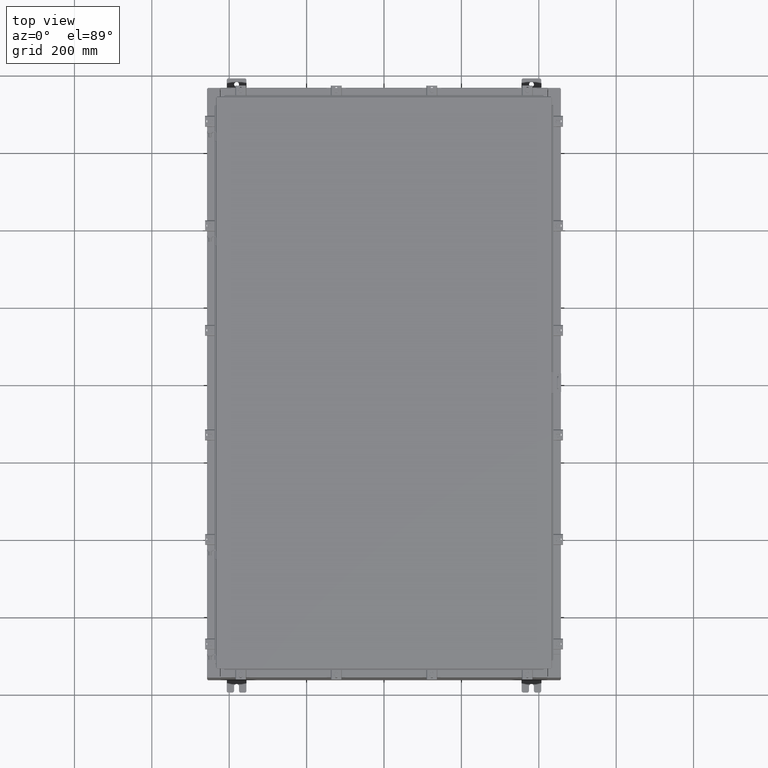
[diagram: clean part render]
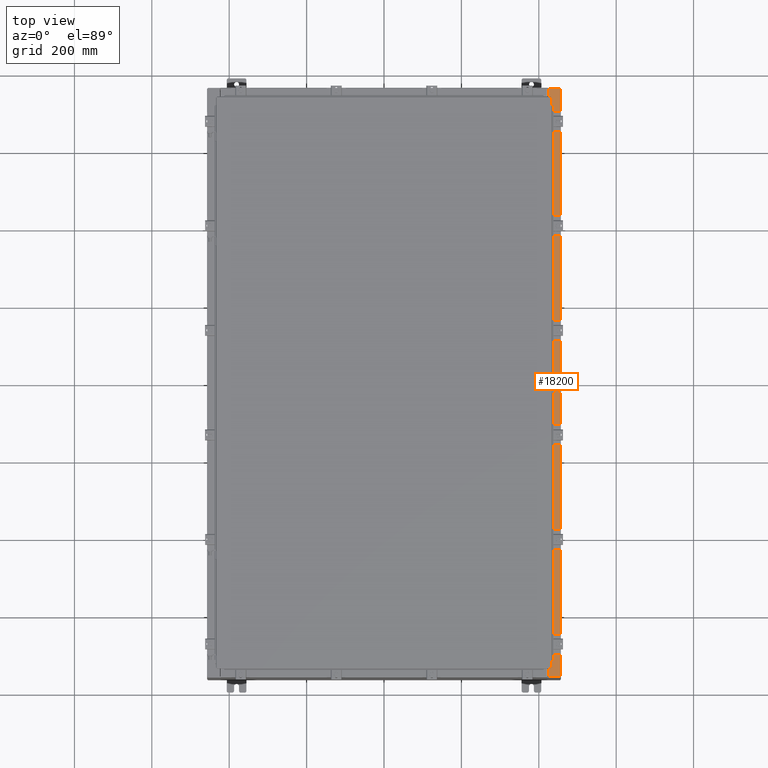
[diagram: same view with one face highlighted and labeled with its STEP entity id]
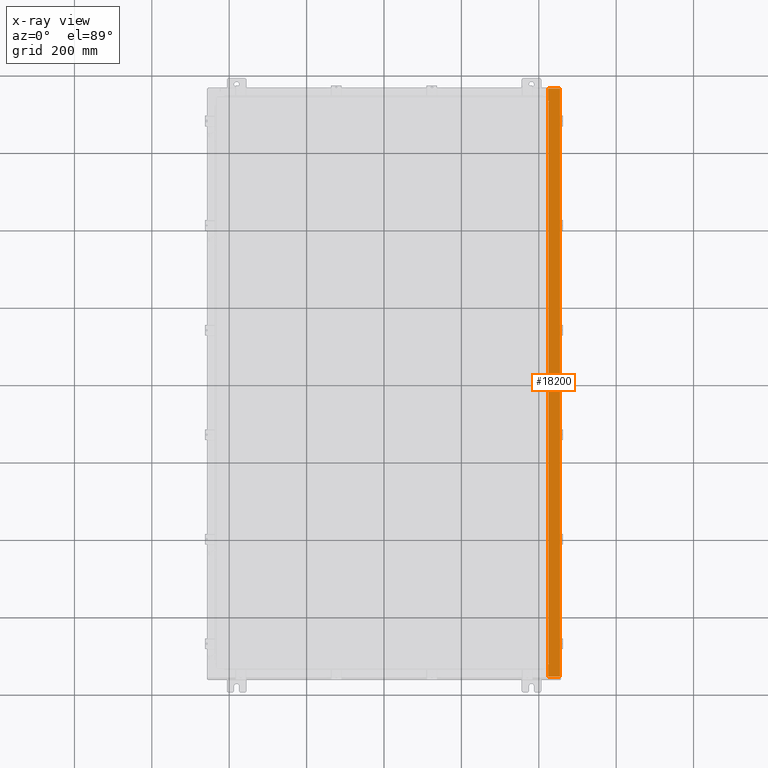
[diagram: x-ray of the same camera — body ghosted, the highlighted face saturated]
A machine part, top view. The second image highlights one B-rep face of the part: STEP entity #18200.
The next image is the same camera in x-ray: the body ghosted, the highlighted face saturated — about 0% of this face is hidden behind the body in this view.
In plain terms, the highlighted planar face has unit normal (-0, -0, -1).
Its self-contained STEP definition (entity closure, byte-faithful):
#413 = CARTESIAN_POINT ( 'NONE',  ( 16.69970000000005300, -28.63110000000000700, 15.92530000000000500 ) ) ;
#508 = DIRECTION ( 'NONE',  ( 3.651556366905947300E-017, -1.000000000000000000, 3.651556366905926900E-017 ) ) ;
#671 = LINE ( 'NONE', #17637, #22641 ) ;
#1128 = VECTOR ( 'NONE', #24385, 39.37007874015748100 ) ;
#1329 = VECTOR ( 'NONE', #23170, 39.37007874015748100 ) ;
#1768 = CARTESIAN_POINT ( 'NONE',  ( 17.91230000000005200, -29.92530000000001100, 15.92530000000000200 ) ) ;
#1787 = LINE ( 'NONE', #5551, #3081 ) ;
#2007 = ORIENTED_EDGE ( 'NONE', *, *, #23087, .T. ) ;
#2577 = CARTESIAN_POINT ( 'NONE',  ( 16.75005000000005500, -28.61242500000000900, 15.92530000000000500 ) ) ;
#2792 = DIRECTION ( 'NONE',  ( 0.0000000000000000000, -1.000000000000000000, 3.651556366905946600E-017 ) ) ;
#2837 = LINE ( 'NONE', #24871, #15464 ) ;
#2879 = ORIENTED_EDGE ( 'NONE', *, *, #7356, .F. ) ;
#2963 = ORIENTED_EDGE ( 'NONE', *, *, #17721, .T. ) ;
#3063 = ORIENTED_EDGE ( 'NONE', *, *, #18418, .T. ) ;
#3081 = VECTOR ( 'NONE', #24761, 39.37007874015748100 ) ;
#3316 = VERTEX_POINT ( 'NONE', #12029 ) ;
#3485 = CARTESIAN_POINT ( 'NONE',  ( 8.545434926991848800E-014, 29.92529999999999300, 15.92530000000009600 ) ) ;
#3965 = CARTESIAN_POINT ( 'NONE',  ( 16.75005000000005500, 28.61242499999997000, 15.92530000000000500 ) ) ;
#4709 = DIRECTION ( 'NONE',  ( 1.000000000000000000, 0.0000000000000000000, 0.0000000000000000000 ) ) ;
#4717 = CIRCLE ( 'NONE', #13096, 0.01867499999999949400 ) ;
#4825 = CARTESIAN_POINT ( 'NONE',  ( 16.69970000000005300, 5.815213060988728800E-016, 15.92530000000000500 ) ) ;
#4866 = CARTESIAN_POINT ( 'NONE',  ( 17.91230000000005200, 29.92529999999999300, 15.92530000000000000 ) ) ;
#5204 = ORIENTED_EDGE ( 'NONE', *, *, #7503, .F. ) ;
#5551 = CARTESIAN_POINT ( 'NONE',  ( 16.71270000000005500, 28.59374999999996800, 15.92530000000000500 ) ) ;
#5596 = VERTEX_POINT ( 'NONE', #7245 ) ;
#6075 = DIRECTION ( 'NONE',  ( 1.000000000000000000, 0.0000000000000000000, 0.0000000000000000000 ) ) ;
#6610 = ORIENTED_EDGE ( 'NONE', *, *, #18724, .F. ) ;
#6833 = CARTESIAN_POINT ( 'NONE',  ( 16.69970000000005300, 28.63109999999997200, 15.92530000000000500 ) ) ;
#6947 = EDGE_CURVE ( 'NONE', #25492, #5596, #25666, .T. ) ;
#7084 = CARTESIAN_POINT ( 'NONE',  ( 16.71270000000005500, -28.59375000000001100, 15.92530000000000500 ) ) ;
#7192 = VERTEX_POINT ( 'NONE', #26423 ) ;
#7245 = CARTESIAN_POINT ( 'NONE',  ( 17.91230000000005200, -29.92530000000001100, 15.92530000000000200 ) ) ;
#7356 = EDGE_CURVE ( 'NONE', #7192, #20156, #671, .T. ) ;
#7452 = LINE ( 'NONE', #413, #17432 ) ;
#7503 = EDGE_CURVE ( 'NONE', #23289, #14206, #18583, .T. ) ;
#7540 = ORIENTED_EDGE ( 'NONE', *, *, #20179, .T. ) ;
#8201 = CARTESIAN_POINT ( 'NONE',  ( 8.545434926991848800E-014, -29.92530000000001100, 15.92530000000009800 ) ) ;
#9152 = CARTESIAN_POINT ( 'NONE',  ( 8.545434926991848800E-014, 5.815213060988761300E-016, 15.92530000000009600 ) ) ;
#9257 = DIRECTION ( 'NONE',  ( -1.000000000000000000, 0.0000000000000000000, 5.349571789159788500E-015 ) ) ;
#11187 = CARTESIAN_POINT ( 'NONE',  ( 16.71270000000005500, -28.59375000000000400, 15.92530000000000500 ) ) ;
#11280 = VERTEX_POINT ( 'NONE', #16484 ) ;
#11299 = DIRECTION ( 'NONE',  ( -0.0000000000000000000, 1.000000000000000000, -0.0000000000000000000 ) ) ;
#11368 = AXIS2_PLACEMENT_3D ( 'NONE', #2577, #17419, #4709 ) ;
#12029 = CARTESIAN_POINT ( 'NONE',  ( 16.69970000000005300, 29.92529999999999300, 15.92530000000000500 ) ) ;
#12824 = ORIENTED_EDGE ( 'NONE', *, *, #14644, .F. ) ;
#12874 = VECTOR ( 'NONE', #11299, 39.37007874015748100 ) ;
#13096 = AXIS2_PLACEMENT_3D ( 'NONE', #3965, #18831, #6075 ) ;
#14136 = DIRECTION ( 'NONE',  ( -1.000000000000000000, 2.430865342914509000E-063, 5.349571789159789300E-015 ) ) ;
#14206 = VERTEX_POINT ( 'NONE', #18862 ) ;
#14268 = VECTOR ( 'NONE', #508, 39.37007874015748100 ) ;
#14319 = ORIENTED_EDGE ( 'NONE', *, *, #20915, .F. ) ;
#14481 = EDGE_CURVE ( 'NONE', #14206, #16842, #1787, .T. ) ;
#14644 = EDGE_CURVE ( 'NONE', #16842, #7192, #4717, .T. ) ;
#14933 = ORIENTED_EDGE ( 'NONE', *, *, #14481, .F. ) ;
#15075 = ORIENTED_EDGE ( 'NONE', *, *, #6947, .F. ) ;
#15296 = CARTESIAN_POINT ( 'NONE',  ( 16.75005000000005500, 28.59374999999996800, 15.92530000000000500 ) ) ;
#15464 = VECTOR ( 'NONE', #22744, 39.37007874015748100 ) ;
#15510 = PLANE ( 'NONE',  #22525 ) ;
#15549 = VECTOR ( 'NONE', #14136, 39.37007874015748100 ) ;
#16375 = CARTESIAN_POINT ( 'NONE',  ( 16.69970000000005300, -29.92530000000001100, 15.92530000000000900 ) ) ;
#16398 = VECTOR ( 'NONE', #2792, 39.37007874015748100 ) ;
#16484 = CARTESIAN_POINT ( 'NONE',  ( 16.69970000000005300, -28.63110000000000700, 15.92530000000000500 ) ) ;
#16614 = ORIENTED_EDGE ( 'NONE', *, *, #20748, .F. ) ;
#16817 = DIRECTION ( 'NONE',  ( -1.000000000000000000, 0.0000000000000000000, 0.0000000000000000000 ) ) ;
#16842 = VERTEX_POINT ( 'NONE', #15296 ) ;
#16873 = LINE ( 'NONE', #3485, #15549 ) ;
#17419 = DIRECTION ( 'NONE',  ( 5.349571789159788500E-015, 3.651556366905946600E-017, 1.000000000000000000 ) ) ;
#17432 = VECTOR ( 'NONE', #19405, 39.37007874015748100 ) ;
#17637 = CARTESIAN_POINT ( 'NONE',  ( 16.75005000000005500, 28.63109999999996800, 15.92530000000000500 ) ) ;
#17721 = EDGE_CURVE ( 'NONE', #25492, #3316, #16873, .T. ) ;
#18200 = ADVANCED_FACE ( 'NONE', ( #23844 ), #15510, .F. ) ;
#18418 = EDGE_CURVE ( 'NONE', #3316, #20156, #2837, .T. ) ;
#18583 = LINE ( 'NONE', #11187, #12874 ) ;
#18724 = EDGE_CURVE ( 'NONE', #11280, #24751, #7452, .T. ) ;
#18831 = DIRECTION ( 'NONE',  ( 5.349571789159788500E-015, 3.651556366905946600E-017, 1.000000000000000000 ) ) ;
#18862 = CARTESIAN_POINT ( 'NONE',  ( 16.71270000000005500, 28.59374999999996800, 15.92530000000000500 ) ) ;
#19405 = DIRECTION ( 'NONE',  ( 1.000000000000000000, 0.0000000000000000000, 0.0000000000000000000 ) ) ;
#19783 = CARTESIAN_POINT ( 'NONE',  ( 16.75005000000005500, -28.63110000000000700, 15.92530000000000500 ) ) ;
#20051 = CARTESIAN_POINT ( 'NONE',  ( 16.75005000000005500, -28.59375000000001100, 15.92530000000000500 ) ) ;
#20156 = VERTEX_POINT ( 'NONE', #6833 ) ;
#20179 = EDGE_CURVE ( 'NONE', #11280, #26375, #27141, .T. ) ;
#20748 = EDGE_CURVE ( 'NONE', #24751, #22239, #25749, .T. ) ;
#20915 = EDGE_CURVE ( 'NONE', #22239, #23289, #23080, .T. ) ;
#21615 = EDGE_LOOP ( 'NONE', ( #6610, #7540, #2007, #15075, #2963, #3063, #2879, #12824, #14933, #5204, #14319, #16614 ) ) ;
#22075 = DIRECTION ( 'NONE',  ( -5.349571789159788500E-015, -3.651556366905946600E-017, -1.000000000000000000 ) ) ;
#22239 = VERTEX_POINT ( 'NONE', #22670 ) ;
#22525 = AXIS2_PLACEMENT_3D ( 'NONE', #9152, #22075, #9257 ) ;
#22641 = VECTOR ( 'NONE', #16817, 39.37007874015748100 ) ;
#22670 = CARTESIAN_POINT ( 'NONE',  ( 16.75005000000005500, -28.59375000000001100, 15.92530000000000500 ) ) ;
#22744 = DIRECTION ( 'NONE',  ( 0.0000000000000000000, -1.000000000000000000, 3.651556366905946600E-017 ) ) ;
#23080 = LINE ( 'NONE', #20051, #1128 ) ;
#23087 = EDGE_CURVE ( 'NONE', #26375, #5596, #23282, .T. ) ;
#23170 = DIRECTION ( 'NONE',  ( 1.000000000000000000, -2.430865342914509000E-063, -5.349571789159789300E-015 ) ) ;
#23282 = LINE ( 'NONE', #8201, #1329 ) ;
#23289 = VERTEX_POINT ( 'NONE', #7084 ) ;
#23844 = FACE_OUTER_BOUND ( 'NONE', #21615, .T. ) ;
#24385 = DIRECTION ( 'NONE',  ( -1.000000000000000000, 0.0000000000000000000, 0.0000000000000000000 ) ) ;
#24751 = VERTEX_POINT ( 'NONE', #19783 ) ;
#24761 = DIRECTION ( 'NONE',  ( 1.000000000000000000, 0.0000000000000000000, 0.0000000000000000000 ) ) ;
#24871 = CARTESIAN_POINT ( 'NONE',  ( 16.69970000000005300, 5.815213060988728800E-016, 15.92530000000000500 ) ) ;
#25492 = VERTEX_POINT ( 'NONE', #4866 ) ;
#25666 = LINE ( 'NONE', #1768, #14268 ) ;
#25749 = CIRCLE ( 'NONE', #11368, 0.01867499999999949400 ) ;
#26375 = VERTEX_POINT ( 'NONE', #16375 ) ;
#26423 = CARTESIAN_POINT ( 'NONE',  ( 16.75005000000005500, 28.63109999999996800, 15.92530000000000500 ) ) ;
#27141 = LINE ( 'NONE', #4825, #16398 ) ;